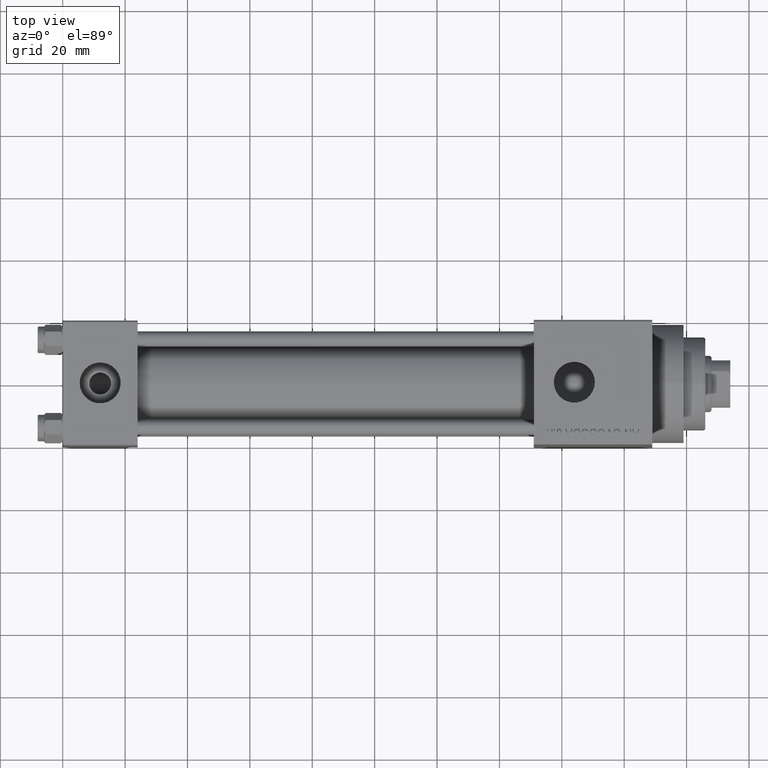
[diagram: clean part render]
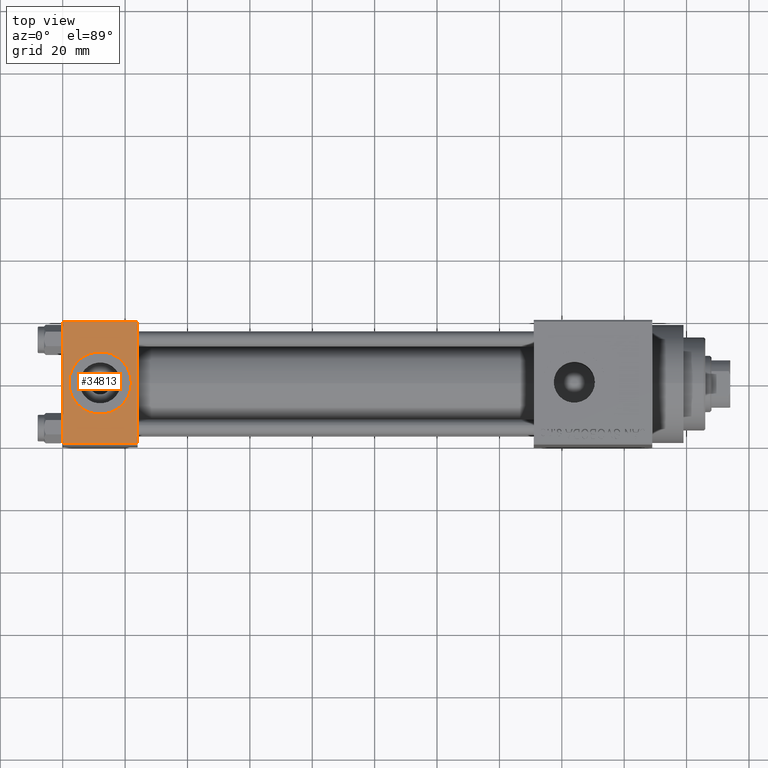
[diagram: same view with one face highlighted and labeled with its STEP entity id]
A machine part, top view. The second image highlights one B-rep face of the part: STEP entity #34813.
In plain terms, the highlighted planar face has unit normal (0, 0, -1).
Its self-contained STEP definition (entity closure, byte-faithful):
#143 = VERTEX_POINT ( 'NONE', #5113 ) ;
#238 = EDGE_CURVE ( 'NONE', #143, #505, #6055, .T. ) ;
#505 = VERTEX_POINT ( 'NONE', #34399 ) ;
#661 = ORIENTED_EDGE ( 'NONE', *, *, #30998, .F. ) ;
#2427 = CARTESIAN_POINT ( 'NONE',  ( 22.00000000000000000, 1.540743955509788682E-30, 19.99999999999999645 ) ) ;
#2796 = CARTESIAN_POINT ( 'NONE',  ( 0.000000000000000000, 20.00000000000000000, 20.00000000000000000 ) ) ;
#3674 = PLANE ( 'NONE',  #34738 ) ;
#3786 = DIRECTION ( 'NONE',  ( 0.000000000000000000, 0.000000000000000000, 1.000000000000000000 ) ) ;
#5113 = CARTESIAN_POINT ( 'NONE',  ( 0.000000000000000000, -19.49999999999999289, 19.99999999999998934 ) ) ;
#5832 = AXIS2_PLACEMENT_3D ( 'NONE', #25452, #3786, #44259 ) ;
#6055 = LINE ( 'NONE', #17231, #39512 ) ;
#6161 = EDGE_CURVE ( 'NONE', #11873, #34376, #27148, .T. ) ;
#6603 = AXIS2_PLACEMENT_3D ( 'NONE', #31401, #45911, #24001 ) ;
#9255 = LINE ( 'NONE', #2796, #34805 ) ;
#11873 = VERTEX_POINT ( 'NONE', #2427 ) ;
#12590 = VECTOR ( 'NONE', #40543, 1000.000000000000000 ) ;
#13107 = ORIENTED_EDGE ( 'NONE', *, *, #20089, .T. ) ;
#17231 = CARTESIAN_POINT ( 'NONE',  ( 24.00000000000000000, -19.49999999999999289, 19.99999999999998934 ) ) ;
#17321 = DIRECTION ( 'NONE',  ( 0.000000000000000000, -1.000000000000000000, -2.602085213965210149E-16 ) ) ;
#17668 = CARTESIAN_POINT ( 'NONE',  ( 24.00000000000000000, 19.50000000000000000, 20.00000000000000000 ) ) ;
#18265 = EDGE_LOOP ( 'NONE', ( #43315, #39267, #661, #13107 ) ) ;
#18670 = DIRECTION ( 'NONE',  ( 0.000000000000000000, 2.602085213965210149E-16, -1.000000000000000000 ) ) ;
#20089 = EDGE_CURVE ( 'NONE', #20205, #45136, #38410, .T. ) ;
#20205 = VERTEX_POINT ( 'NONE', #17668 ) ;
#21639 = ORIENTED_EDGE ( 'NONE', *, *, #6161, .F. ) ;
#22202 = CARTESIAN_POINT ( 'NONE',  ( 24.00000000000000000, 20.00000000000000000, 20.00000000000000000 ) ) ;
#22433 = LINE ( 'NONE', #22202, #12590 ) ;
#23396 = CARTESIAN_POINT ( 'NONE',  ( 0.000000000000000000, 19.50000000000000000, 20.00000000000000000 ) ) ;
#23549 = ORIENTED_EDGE ( 'NONE', *, *, #34286, .F. ) ;
#24001 = DIRECTION ( 'NONE',  ( 1.000000000000000000, 0.000000000000000000, 0.000000000000000000 ) ) ;
#25452 = CARTESIAN_POINT ( 'NONE',  ( 12.00000000000000000, 1.540743955509788682E-30, 19.99999999999999645 ) ) ;
#25580 = CARTESIAN_POINT ( 'NONE',  ( 24.00000000000000000, 20.00000000000000000, 20.00000000000000000 ) ) ;
#27142 = CIRCLE ( 'NONE', #5832, 9.999999999999998224 ) ;
#27148 = CIRCLE ( 'NONE', #6603, 9.999999999999998224 ) ;
#27377 = EDGE_LOOP ( 'NONE', ( #21639, #23549 ) ) ;
#28270 = VECTOR ( 'NONE', #45782, 1000.000000000000000 ) ;
#29265 = CARTESIAN_POINT ( 'NONE',  ( 2.000000000000003553, 1.224646799147354440E-15, 19.99999999999999645 ) ) ;
#29391 = FACE_OUTER_BOUND ( 'NONE', #18265, .T. ) ;
#30998 = EDGE_CURVE ( 'NONE', #20205, #505, #22433, .T. ) ;
#31401 = CARTESIAN_POINT ( 'NONE',  ( 12.00000000000000000, 1.540743955509788682E-30, 19.99999999999999645 ) ) ;
#34286 = EDGE_CURVE ( 'NONE', #34376, #11873, #27142, .T. ) ;
#34376 = VERTEX_POINT ( 'NONE', #29265 ) ;
#34399 = CARTESIAN_POINT ( 'NONE',  ( 24.00000000000000000, -19.49999999999999289, 19.99999999999998934 ) ) ;
#34738 = AXIS2_PLACEMENT_3D ( 'NONE', #25580, #18670, #47003 ) ;
#34805 = VECTOR ( 'NONE', #17321, 1000.000000000000000 ) ;
#34813 = ADVANCED_FACE ( 'NONE', ( #36077, #29391 ), #3674, .F. ) ;
#36077 = FACE_BOUND ( 'NONE', #27377, .T. ) ;
#36967 = EDGE_CURVE ( 'NONE', #45136, #143, #9255, .T. ) ;
#38410 = LINE ( 'NONE', #23396, #28270 ) ;
#39267 = ORIENTED_EDGE ( 'NONE', *, *, #238, .T. ) ;
#39512 = VECTOR ( 'NONE', #45822, 1000.000000000000000 ) ;
#40405 = CARTESIAN_POINT ( 'NONE',  ( 0.000000000000000000, 19.50000000000000000, 20.00000000000000000 ) ) ;
#40543 = DIRECTION ( 'NONE',  ( 0.000000000000000000, -1.000000000000000000, -2.602085213965210149E-16 ) ) ;
#43315 = ORIENTED_EDGE ( 'NONE', *, *, #36967, .T. ) ;
#44259 = DIRECTION ( 'NONE',  ( 1.000000000000000000, 0.000000000000000000, 0.000000000000000000 ) ) ;
#45136 = VERTEX_POINT ( 'NONE', #40405 ) ;
#45782 = DIRECTION ( 'NONE',  ( -1.000000000000000000, 0.000000000000000000, 0.000000000000000000 ) ) ;
#45822 = DIRECTION ( 'NONE',  ( 1.000000000000000000, 0.000000000000000000, 0.000000000000000000 ) ) ;
#45911 = DIRECTION ( 'NONE',  ( 0.000000000000000000, 0.000000000000000000, 1.000000000000000000 ) ) ;
#47003 = DIRECTION ( 'NONE',  ( 0.000000000000000000, 1.000000000000000000, 2.602085213965210149E-16 ) ) ;